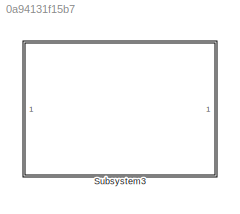
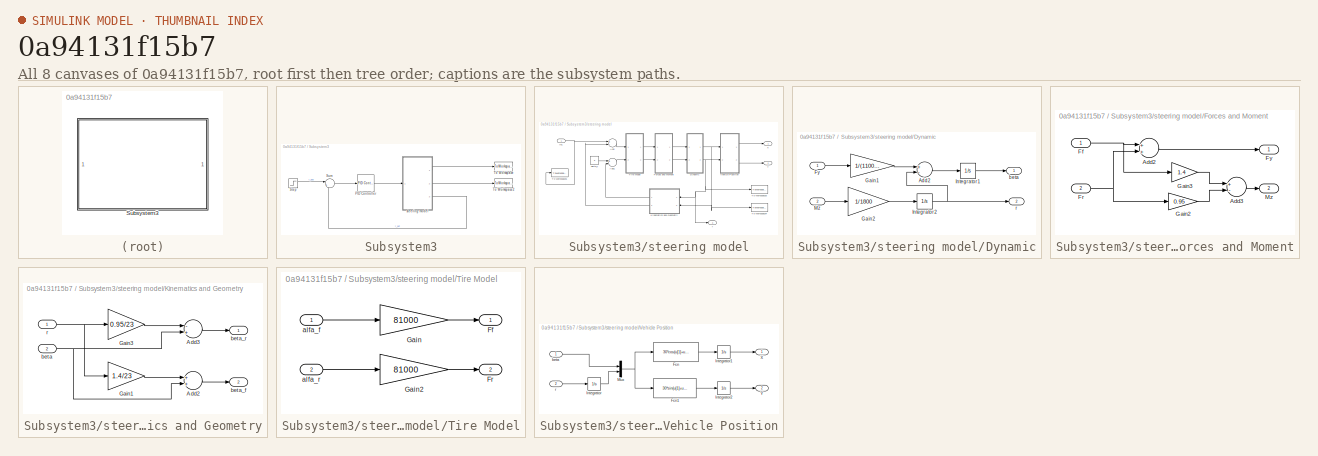
[diagram: thumbnail index - all 8 canvases of the model, root first then tree order]
MODEL slx_0a94131f15b7
KIND model
CONFIG AbsTol = auto
CONFIG EnableMultiTasking = off
CONFIG FixedStep = auto
CONFIG MaxStep = auto
CONFIG MinStep = auto
CONFIG RelTol = 1e-3
CONFIG SampleTimeConstraint = Unconstrained
CONFIG Solver = VariableStepAuto
CONFIG SolverName = VariableStepAuto
CONFIG StartTime = 0.0
CONFIG StopTime = 10.0
BLOCK [SubSystem] Subsystem3
  Ports = []
  RequestExecContextInheritance = off
  Variant = off
BLOCK [Reference] Subsystem3/PID Controller  REF=simulink/Continuous/PID Controller
  Ports = [1, 1]
  SourceBlock = simulink/Continuous/PID Controller
  SourceProductBaseCode = SL
  SourceProductName = Simulink
  SourceType = PID 1dof
BLOCK [Step] Subsystem3/Step
  After = 23/130
  SampleTime = 0
BLOCK [Sum] Subsystem3/Sum
  IconShape = round
  InputSameDT = off
  Inputs = |+-
  OutDataTypeStr = Inherit: Inherit via internal rule
  Ports = [2, 1]
  SaturateOnIntegerOverflow = off
BLOCK [ToWorkspace] Subsystem3/To Workspace
  FixptAsFi = on
  MaxDataPoints = inf
  Ports = [1]
  SampleTime = -1
  Save2DSignal = 3-D array (concatenate along third dimension)
  VariableName = X
BLOCK [ToWorkspace] Subsystem3/To Workspace2
  FixptAsFi = on
  MaxDataPoints = inf
  Ports = [1]
  SampleTime = -1
  Save2DSignal = 3-D array (concatenate along third dimension)
  VariableName = Y
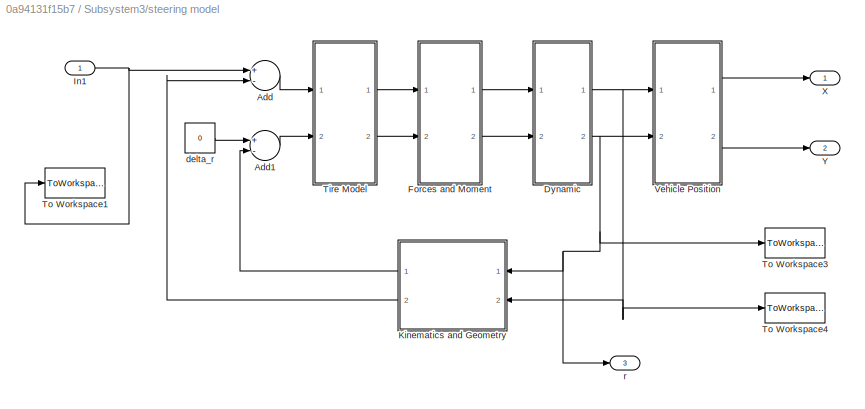
BLOCK [SubSystem] Subsystem3/steering model
  Ports = [1, 3]
  RequestExecContextInheritance = off
  Variant = off
BLOCK [Sum] Subsystem3/steering model/Add
  InputSameDT = off
  Inputs = +-
  OutDataTypeStr = Inherit: Inherit via internal rule
  Ports = [2, 1]
  SaturateOnIntegerOverflow = off
BLOCK [Sum] Subsystem3/steering model/Add1
  InputSameDT = off
  Inputs = +-
  OutDataTypeStr = Inherit: Inherit via internal rule
  Ports = [2, 1]
  SaturateOnIntegerOverflow = off
BLOCK [SubSystem] Subsystem3/steering model/Dynamic
  Ports = [2, 2]
  RequestExecContextInheritance = off
  Variant = off
BLOCK [Sum] Subsystem3/steering model/Dynamic/Add2
  InputSameDT = off
  Inputs = +-
  OutDataTypeStr = Inherit: Inherit via internal rule
  Ports = [2, 1]
  SaturateOnIntegerOverflow = off
BLOCK [Inport] Subsystem3/steering model/Dynamic/Fy
  IconDisplay = Port number
BLOCK [Gain] Subsystem3/steering model/Dynamic/Gain1
  Gain = 1/(1100*23)
  OutDataTypeStr = Inherit: Inherit via internal rule
  ParamDataTypeStr = Inherit: Inherit via internal rule
  SaturateOnIntegerOverflow = off
BLOCK [Gain] Subsystem3/steering model/Dynamic/Gain2
  Gain = 1/1800
  OutDataTypeStr = Inherit: Inherit via internal rule
  ParamDataTypeStr = Inherit: Inherit via internal rule
  SaturateOnIntegerOverflow = off
BLOCK [Integrator] Subsystem3/steering model/Dynamic/Integrator1
  Ports = [1, 1]
BLOCK [Integrator] Subsystem3/steering model/Dynamic/Integrator2
  Ports = [1, 1]
BLOCK [Inport] Subsystem3/steering model/Dynamic/Mz
  IconDisplay = Port number
  Port = 2
BLOCK [Outport] Subsystem3/steering model/Dynamic/beta
  IconDisplay = Port number
BLOCK [Outport] Subsystem3/steering model/Dynamic/r
  IconDisplay = Port number
  Port = 2
BLOCK [SubSystem] Subsystem3/steering model/Forces and Moment
  Ports = [2, 2]
  RequestExecContextInheritance = off
  Variant = off
BLOCK [Sum] Subsystem3/steering model/Forces and Moment/Add2
  InputSameDT = off
  OutDataTypeStr = Inherit: Inherit via internal rule
  Ports = [2, 1]
  SaturateOnIntegerOverflow = off
BLOCK [Sum] Subsystem3/steering model/Forces and Moment/Add3
  InputSameDT = off
  Inputs = +-
  OutDataTypeStr = Inherit: Inherit via internal rule
  Ports = [2, 1]
  SaturateOnIntegerOverflow = off
BLOCK [Inport] Subsystem3/steering model/Forces and Moment/Ff
  IconDisplay = Port number
BLOCK [Inport] Subsystem3/steering model/Forces and Moment/Fr
  IconDisplay = Port number
  Port = 2
BLOCK [Outport] Subsystem3/steering model/Forces and Moment/Fy
  IconDisplay = Port number
BLOCK [Gain] Subsystem3/steering model/Forces and Moment/Gain2
  Gain = 0.95
  OutDataTypeStr = Inherit: Inherit via internal rule
  ParamDataTypeStr = Inherit: Inherit via internal rule
  SaturateOnIntegerOverflow = off
BLOCK [Gain] Subsystem3/steering model/Forces and Moment/Gain3
  Gain = 1.4
  OutDataTypeStr = Inherit: Inherit via internal rule
  ParamDataTypeStr = Inherit: Inherit via internal rule
  SaturateOnIntegerOverflow = off
BLOCK [Outport] Subsystem3/steering model/Forces and Moment/Mz
  IconDisplay = Port number
  Port = 2
BLOCK [Inport] Subsystem3/steering model/In1
  IconDisplay = Port number
BLOCK [SubSystem] Subsystem3/steering model/Kinematics and Geometry
  Ports = [2, 2]
  RequestExecContextInheritance = off
  Variant = off
BLOCK [Sum] Subsystem3/steering model/Kinematics and Geometry/Add2
  InputSameDT = off
  OutDataTypeStr = Inherit: Inherit via internal rule
  Ports = [2, 1]
  SaturateOnIntegerOverflow = off
BLOCK [Sum] Subsystem3/steering model/Kinematics and Geometry/Add3
  InputSameDT = off
  Inputs = -+
  OutDataTypeStr = Inherit: Inherit via internal rule
  Ports = [2, 1]
  SaturateOnIntegerOverflow = off
BLOCK [Gain] Subsystem3/steering model/Kinematics and Geometry/Gain1
  Gain = 1.4/23
  OutDataTypeStr = Inherit: Inherit via internal rule
  ParamDataTypeStr = Inherit: Inherit via internal rule
  SaturateOnIntegerOverflow = off
BLOCK [Gain] Subsystem3/steering model/Kinematics and Geometry/Gain3
  Gain = 0.95/23
  OutDataTypeStr = Inherit: Inherit via internal rule
  ParamDataTypeStr = Inherit: Inherit via internal rule
  SaturateOnIntegerOverflow = off
BLOCK [Inport] Subsystem3/steering model/Kinematics and Geometry/beta
  IconDisplay = Port number
  Port = 2
BLOCK [Outport] Subsystem3/steering model/Kinematics and Geometry/beta_f
  IconDisplay = Port number
  Port = 2
BLOCK [Outport] Subsystem3/steering model/Kinematics and Geometry/beta_r
  IconDisplay = Port number
BLOCK [Inport] Subsystem3/steering model/Kinematics and Geometry/r
  IconDisplay = Port number
BLOCK [SubSystem] Subsystem3/steering model/Tire Model
  Ports = [2, 2]
  RequestExecContextInheritance = off
  Variant = off
BLOCK [Outport] Subsystem3/steering model/Tire Model/Ff
  IconDisplay = Port number
BLOCK [Outport] Subsystem3/steering model/Tire Model/Fr
  IconDisplay = Port number
  Port = 2
BLOCK [Gain] Subsystem3/steering model/Tire Model/Gain
  Gain = 81000
  OutDataTypeStr = Inherit: Inherit via internal rule
  ParamDataTypeStr = Inherit: Inherit via internal rule
  SaturateOnIntegerOverflow = off
BLOCK [Gain] Subsystem3/steering model/Tire Model/Gain2
  Gain = 81000
  OutDataTypeStr = Inherit: Inherit via internal rule
  ParamDataTypeStr = Inherit: Inherit via internal rule
  SaturateOnIntegerOverflow = off
BLOCK [Inport] Subsystem3/steering model/Tire Model/alfa_f
  IconDisplay = Port number
BLOCK [Inport] Subsystem3/steering model/Tire Model/alfa_r
  IconDisplay = Port number
  Port = 2
BLOCK [ToWorkspace] Subsystem3/steering model/To Workspace1
  FixptAsFi = on
  MaxDataPoints = inf
  Ports = [1]
  SampleTime = -1
  Save2DSignal = 3-D array (concatenate along third dimension)
  SaveFormat = Timeseries
  VariableName = delta_f
BLOCK [ToWorkspace] Subsystem3/steering model/To Workspace3
  FixptAsFi = on
  MaxDataPoints = inf
  Ports = [1]
  SampleTime = -1
  Save2DSignal = 3-D array (concatenate along third dimension)
  SaveFormat = Timeseries
  VariableName = r
BLOCK [ToWorkspace] Subsystem3/steering model/To Workspace4
  FixptAsFi = on
  MaxDataPoints = inf
  Ports = [1]
  SampleTime = -1
  Save2DSignal = 3-D array (concatenate along third dimension)
  SaveFormat = Timeseries
  VariableName = beta
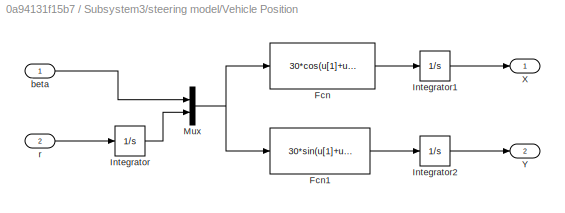
BLOCK [SubSystem] Subsystem3/steering model/Vehicle Position
  Ports = [2, 2]
  RequestExecContextInheritance = off
  Variant = off
BLOCK [Fcn] Subsystem3/steering model/Vehicle Position/Fcn
  Expr = 30*cos(u[1]+u[2])
BLOCK [Fcn] Subsystem3/steering model/Vehicle Position/Fcn1
  Expr = 30*sin(u[1]+u[2])
BLOCK [Integrator] Subsystem3/steering model/Vehicle Position/Integrator
  Ports = [1, 1]
BLOCK [Integrator] Subsystem3/steering model/Vehicle Position/Integrator1
  Ports = [1, 1]
BLOCK [Integrator] Subsystem3/steering model/Vehicle Position/Integrator2
  Ports = [1, 1]
BLOCK [Mux] Subsystem3/steering model/Vehicle Position/Mux
  DisplayOption = bar
  Inputs = 2
  Ports = [2, 1]
BLOCK [Outport] Subsystem3/steering model/Vehicle Position/X
  IconDisplay = Port number
BLOCK [Outport] Subsystem3/steering model/Vehicle Position/Y
  IconDisplay = Port number
  Port = 2
BLOCK [Inport] Subsystem3/steering model/Vehicle Position/beta
  IconDisplay = Port number
BLOCK [Inport] Subsystem3/steering model/Vehicle Position/r
  IconDisplay = Port number
  Port = 2
BLOCK [Outport] Subsystem3/steering model/X
  IconDisplay = Port number
BLOCK [Outport] Subsystem3/steering model/Y
  IconDisplay = Port number
  Port = 2
BLOCK [Constant] Subsystem3/steering model/delta_r
  Value = 0
BLOCK [Outport] Subsystem3/steering model/r
  IconDisplay = Port number
  Port = 3
LINE Subsystem3/PID Controller:1 -> Subsystem3/steering model:1
LINE Subsystem3/Step:1 -> Subsystem3/Sum:1
LINE Subsystem3/Sum:1 -> Subsystem3/PID Controller:1
LINE Subsystem3/steering model/Add1:1 -> Subsystem3/steering model/Tire Model:2
LINE Subsystem3/steering model/Add:1 -> Subsystem3/steering model/Tire Model:1
LINE Subsystem3/steering model/Dynamic/Add2:1 -> Subsystem3/steering model/Dynamic/Integrator1:1
LINE Subsystem3/steering model/Dynamic/Fy:1 -> Subsystem3/steering model/Dynamic/Gain1:1
LINE Subsystem3/steering model/Dynamic/Gain1:1 -> Subsystem3/steering model/Dynamic/Add2:1
LINE Subsystem3/steering model/Dynamic/Gain2:1 -> Subsystem3/steering model/Dynamic/Integrator2:1
LINE Subsystem3/steering model/Dynamic/Integrator1:1 -> Subsystem3/steering model/Dynamic/beta:1
NET Subsystem3/steering model/Dynamic/Integrator2:1 -> Subsystem3/steering model/Dynamic/Add2:2, Subsystem3/steering model/Dynamic/r:1
LINE Subsystem3/steering model/Dynamic/Mz:1 -> Subsystem3/steering model/Dynamic/Gain2:1
NET Subsystem3/steering model/Dynamic:1 -> Subsystem3/steering model/Kinematics and Geometry:2, Subsystem3/steering model/To Workspace4:1, Subsystem3/steering model/Vehicle Position:1
NET Subsystem3/steering model/Dynamic:2 -> Subsystem3/steering model/Kinematics and Geometry:1, Subsystem3/steering model/To Workspace3:1, Subsystem3/steering model/Vehicle Position:2, Subsystem3/steering model/r:1
LINE Subsystem3/steering model/Forces and Moment/Add2:1 -> Subsystem3/steering model/Forces and Moment/Fy:1
LINE Subsystem3/steering model/Forces and Moment/Add3:1 -> Subsystem3/steering model/Forces and Moment/Mz:1
NET Subsystem3/steering model/Forces and Moment/Ff:1 -> Subsystem3/steering model/Forces and Moment/Add2:1, Subsystem3/steering model/Forces and Moment/Gain3:1
NET Subsystem3/steering model/Forces and Moment/Fr:1 -> Subsystem3/steering model/Forces and Moment/Add2:2, Subsystem3/steering model/Forces and Moment/Gain2:1
LINE Subsystem3/steering model/Forces and Moment/Gain2:1 -> Subsystem3/steering model/Forces and Moment/Add3:2
LINE Subsystem3/steering model/Forces and Moment/Gain3:1 -> Subsystem3/steering model/Forces and Moment/Add3:1
LINE Subsystem3/steering model/Forces and Moment:1 -> Subsystem3/steering model/Dynamic:1
LINE Subsystem3/steering model/Forces and Moment:2 -> Subsystem3/steering model/Dynamic:2
NET Subsystem3/steering model/In1:1 -> Subsystem3/steering model/Add:1, Subsystem3/steering model/To Workspace1:1
LINE Subsystem3/steering model/Kinematics and Geometry/Add2:1 -> Subsystem3/steering model/Kinematics and Geometry/beta_f:1
LINE Subsystem3/steering model/Kinematics and Geometry/Add3:1 -> Subsystem3/steering model/Kinematics and Geometry/beta_r:1
LINE Subsystem3/steering model/Kinematics and Geometry/Gain1:1 -> Subsystem3/steering model/Kinematics and Geometry/Add2:1
LINE Subsystem3/steering model/Kinematics and Geometry/Gain3:1 -> Subsystem3/steering model/Kinematics and Geometry/Add3:1
NET Subsystem3/steering model/Kinematics and Geometry/beta:1 -> Subsystem3/steering model/Kinematics and Geometry/Add2:2, Subsystem3/steering model/Kinematics and Geometry/Add3:2
NET Subsystem3/steering model/Kinematics and Geometry/r:1 -> Subsystem3/steering model/Kinematics and Geometry/Gain1:1, Subsystem3/steering model/Kinematics and Geometry/Gain3:1
LINE Subsystem3/steering model/Kinematics and Geometry:1 -> Subsystem3/steering model/Add1:2
LINE Subsystem3/steering model/Kinematics and Geometry:2 -> Subsystem3/steering model/Add:2
LINE Subsystem3/steering model/Tire Model/Gain2:1 -> Subsystem3/steering model/Tire Model/Fr:1
LINE Subsystem3/steering model/Tire Model/Gain:1 -> Subsystem3/steering model/Tire Model/Ff:1
LINE Subsystem3/steering model/Tire Model/alfa_f:1 -> Subsystem3/steering model/Tire Model/Gain:1
LINE Subsystem3/steering model/Tire Model/alfa_r:1 -> Subsystem3/steering model/Tire Model/Gain2:1
LINE Subsystem3/steering model/Tire Model:1 -> Subsystem3/steering model/Forces and Moment:1
LINE Subsystem3/steering model/Tire Model:2 -> Subsystem3/steering model/Forces and Moment:2
LINE Subsystem3/steering model/Vehicle Position/Fcn1:1 -> Subsystem3/steering model/Vehicle Position/Integrator2:1
LINE Subsystem3/steering model/Vehicle Position/Fcn:1 -> Subsystem3/steering model/Vehicle Position/Integrator1:1
LINE Subsystem3/steering model/Vehicle Position/Integrator1:1 -> Subsystem3/steering model/Vehicle Position/X:1
LINE Subsystem3/steering model/Vehicle Position/Integrator2:1 -> Subsystem3/steering model/Vehicle Position/Y:1
LINE Subsystem3/steering model/Vehicle Position/Integrator:1 -> Subsystem3/steering model/Vehicle Position/Mux:2
NET Subsystem3/steering model/Vehicle Position/Mux:1 -> Subsystem3/steering model/Vehicle Position/Fcn1:1, Subsystem3/steering model/Vehicle Position/Fcn:1
LINE Subsystem3/steering model/Vehicle Position/beta:1 -> Subsystem3/steering model/Vehicle Position/Mux:1
LINE Subsystem3/steering model/Vehicle Position/r:1 -> Subsystem3/steering model/Vehicle Position/Integrator:1
LINE Subsystem3/steering model/Vehicle Position:1 -> Subsystem3/steering model/X:1
LINE Subsystem3/steering model/Vehicle Position:2 -> Subsystem3/steering model/Y:1
LINE Subsystem3/steering model/delta_r:1 -> Subsystem3/steering model/Add1:1
LINE Subsystem3/steering model:1 -> Subsystem3/To Workspace:1
LINE Subsystem3/steering model:2 -> Subsystem3/To Workspace2:1
LINE Subsystem3/steering model:3 -> Subsystem3/Sum:2
note: NET lines group one-source signal fan-out (src -> all destinations, sorted); 1:1 wires keep LINE
